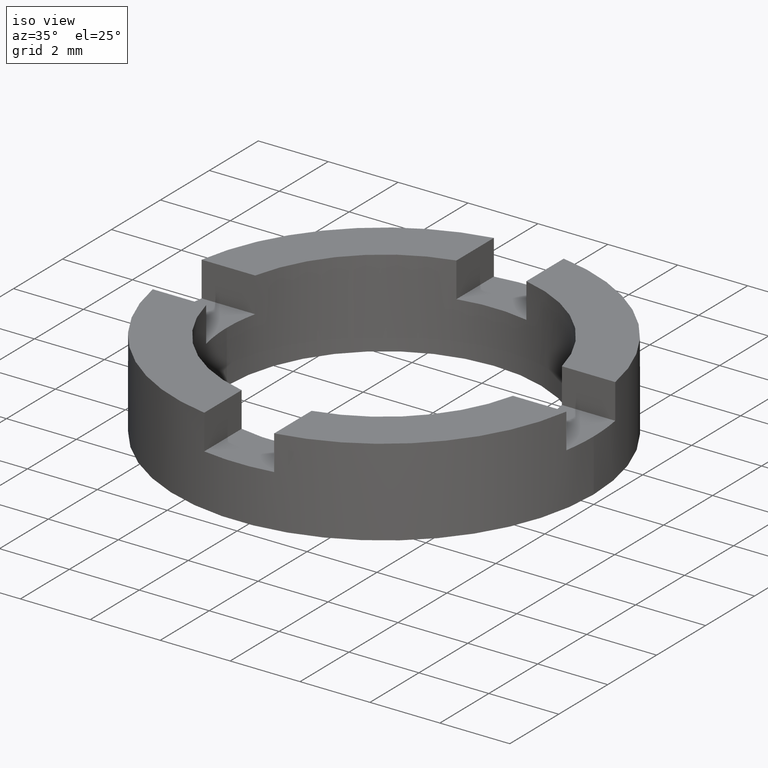
[diagram: clean part render]
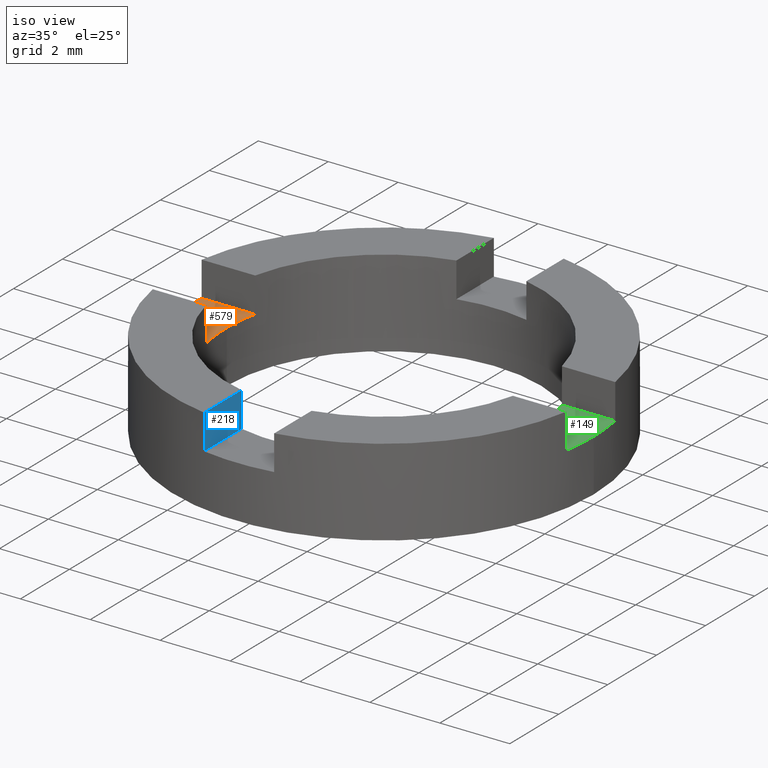
[diagram: same view with three faces highlighted in distinct colors, each labeled with its STEP entity id]
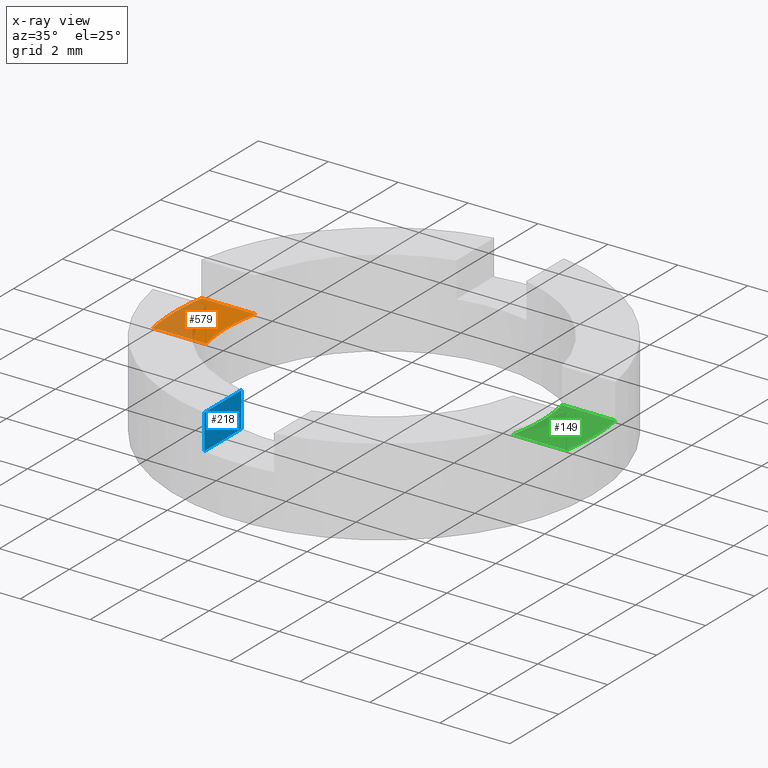
[diagram: x-ray of the same camera — body ghosted, the three highlighted faces saturated]
A machine part, iso view with three faces highlighted in distinct colors.
The next image is the same camera in x-ray (body ghosted, the three faces saturated) — at least one of them is partly hidden behind the body in this view.
Their STEP definitions:

[orange] entity #579 — the highlighted planar face has unit normal (-0, 0, 1).
#7 = CARTESIAN_POINT ( 'NONE',  ( -4.500000000000000000, 0.000000000000000000, 1.500000000000000000 ) ) ;
#38 = EDGE_LOOP ( 'NONE', ( #646, #582, #611, #334, #564, #67 ) ) ;
#54 = DIRECTION ( 'NONE',  ( 1.000000000000000000, -3.722427458866898820E-15, 0.000000000000000000 ) ) ;
#65 = VERTEX_POINT ( 'NONE', #469 ) ;
#67 = ORIENTED_EDGE ( 'NONE', *, *, #454, .T. ) ;
#76 = VERTEX_POINT ( 'NONE', #551 ) ;
#86 = DIRECTION ( 'NONE',  ( 1.000000000000000000, 0.000000000000000000, 0.000000000000000000 ) ) ;
#87 = LINE ( 'NONE', #609, #375 ) ;
#92 = EDGE_CURVE ( 'NONE', #497, #537, #763, .T. ) ;
#99 = DIRECTION ( 'NONE',  ( -0.000000000000000000, 0.000000000000000000, 1.000000000000000000 ) ) ;
#110 = EDGE_CURVE ( 'NONE', #65, #76, #240, .T. ) ;
#148 = EDGE_CURVE ( 'NONE', #65, #651, #494, .T. ) ;
#154 = CARTESIAN_POINT ( 'NONE',  ( 0.000000000000000000, 0.000000000000000000, 1.500000000000000000 ) ) ;
#177 = DIRECTION ( 'NONE',  ( 0.000000000000000000, -0.000000000000000000, -1.000000000000000000 ) ) ;
#184 = DIRECTION ( 'NONE',  ( 1.000000000000000000, 0.000000000000000000, 0.000000000000000000 ) ) ;
#186 = AXIS2_PLACEMENT_3D ( 'NONE', #732, #99, #86 ) ;
#188 = CARTESIAN_POINT ( 'NONE',  ( 0.000000000000000000, 0.000000000000000000, 1.500000000000000000 ) ) ;
#206 = EDGE_CURVE ( 'NONE', #651, #282, #770, .T. ) ;
#240 = LINE ( 'NONE', #578, #243 ) ;
#241 = PLANE ( 'NONE',  #453 ) ;
#243 = VECTOR ( 'NONE', #730, 1000.000000000000000 ) ;
#282 = VERTEX_POINT ( 'NONE', #573 ) ;
#288 = DIRECTION ( 'NONE',  ( 1.000000000000000000, 0.000000000000000000, 0.000000000000000000 ) ) ;
#323 = CARTESIAN_POINT ( 'NONE',  ( 0.000000000000000000, 0.000000000000000000, 1.500000000000000000 ) ) ;
#325 = DIRECTION ( 'NONE',  ( 0.000000000000000000, -0.000000000000000000, -1.000000000000000000 ) ) ;
#328 = FACE_OUTER_BOUND ( 'NONE', #38, .T. ) ;
#333 = CIRCLE ( 'NONE', #709, 4.500000000000000000 ) ;
#334 = ORIENTED_EDGE ( 'NONE', *, *, #702, .T. ) ;
#372 = DIRECTION ( 'NONE',  ( -0.000000000000000000, 0.000000000000000000, 1.000000000000000000 ) ) ;
#375 = VECTOR ( 'NONE', #54, 1000.000000000000000 ) ;
#433 = AXIS2_PLACEMENT_3D ( 'NONE', #756, #372, #465 ) ;
#453 = AXIS2_PLACEMENT_3D ( 'NONE', #323, #694, #288 ) ;
#454 = EDGE_CURVE ( 'NONE', #537, #76, #333, .T. ) ;
#459 = CARTESIAN_POINT ( 'NONE',  ( -6.000000000000000888, 0.000000000000000000, 1.500000000000000000 ) ) ;
#465 = DIRECTION ( 'NONE',  ( 1.000000000000000000, 0.000000000000000000, 0.000000000000000000 ) ) ;
#469 = CARTESIAN_POINT ( 'NONE',  ( -5.916079783099614353, 1.000000000000021316, 1.500000000000000000 ) ) ;
#494 = CIRCLE ( 'NONE', #186, 6.000000000000000888 ) ;
#497 = VERTEX_POINT ( 'NONE', #662 ) ;
#537 = VERTEX_POINT ( 'NONE', #7 ) ;
#551 = CARTESIAN_POINT ( 'NONE',  ( -4.387482193696056854, 1.000000000000015321, 1.500000000000000000 ) ) ;
#564 = ORIENTED_EDGE ( 'NONE', *, *, #92, .T. ) ;
#573 = CARTESIAN_POINT ( 'NONE',  ( -5.916079783099620570, -0.9999999999999790168, 1.500000000000000000 ) ) ;
#578 = CARTESIAN_POINT ( 'NONE',  ( 3.758567531283077831E-15, 0.9999999999999988898, 1.500000000000000000 ) ) ;
#579 = ADVANCED_FACE ( 'NONE', ( #328 ), #241, .T. ) ;
#582 = ORIENTED_EDGE ( 'NONE', *, *, #148, .T. ) ;
#609 = CARTESIAN_POINT ( 'NONE',  ( -3.722427458866902764E-15, -1.000000000000001110, 1.500000000000000000 ) ) ;
#611 = ORIENTED_EDGE ( 'NONE', *, *, #206, .T. ) ;
#626 = AXIS2_PLACEMENT_3D ( 'NONE', #188, #177, #665 ) ;
#646 = ORIENTED_EDGE ( 'NONE', *, *, #110, .F. ) ;
#651 = VERTEX_POINT ( 'NONE', #459 ) ;
#662 = CARTESIAN_POINT ( 'NONE',  ( -4.387482193696063959, -0.9999999999999850120, 1.500000000000000000 ) ) ;
#665 = DIRECTION ( 'NONE',  ( 1.000000000000000000, 0.000000000000000000, 0.000000000000000000 ) ) ;
#694 = DIRECTION ( 'NONE',  ( -0.000000000000000000, 0.000000000000000000, 1.000000000000000000 ) ) ;
#702 = EDGE_CURVE ( 'NONE', #282, #497, #87, .T. ) ;
#709 = AXIS2_PLACEMENT_3D ( 'NONE', #154, #325, #184 ) ;
#730 = DIRECTION ( 'NONE',  ( 1.000000000000000000, -3.758567531283081775E-15, 0.000000000000000000 ) ) ;
#732 = CARTESIAN_POINT ( 'NONE',  ( 0.000000000000000000, 0.000000000000000000, 1.500000000000000000 ) ) ;
#756 = CARTESIAN_POINT ( 'NONE',  ( 0.000000000000000000, 0.000000000000000000, 1.500000000000000000 ) ) ;
#763 = CIRCLE ( 'NONE', #626, 4.500000000000000000 ) ;
#770 = CIRCLE ( 'NONE', #433, 6.000000000000000888 ) ;

[blue] entity #218 — the highlighted planar face has unit normal (1, 0, 0).
#9 = ORIENTED_EDGE ( 'NONE', *, *, #32, .T. ) ;
#18 = EDGE_CURVE ( 'NONE', #371, #618, #764, .T. ) ;
#32 = EDGE_CURVE ( 'NONE', #618, #647, #751, .T. ) ;
#35 = ORIENTED_EDGE ( 'NONE', *, *, #781, .F. ) ;
#36 = EDGE_LOOP ( 'NONE', ( #118, #35, #663, #9 ) ) ;
#46 = CARTESIAN_POINT ( 'NONE',  ( -0.9999999999999986677, -4.387482193696060406, 1.500000000000000000 ) ) ;
#53 = DIRECTION ( 'NONE',  ( 0.000000000000000000, 1.000000000000000000, -0.000000000000000000 ) ) ;
#118 = ORIENTED_EDGE ( 'NONE', *, *, #175, .F. ) ;
#131 = DIRECTION ( 'NONE',  ( 1.000000000000000000, 0.000000000000000000, 0.000000000000000000 ) ) ;
#135 = CARTESIAN_POINT ( 'NONE',  ( -0.9999999999999986677, -4.387482193696060406, 1.500000000000000000 ) ) ;
#164 = DIRECTION ( 'NONE',  ( 0.000000000000000000, 0.000000000000000000, -1.000000000000000000 ) ) ;
#175 = EDGE_CURVE ( 'NONE', #560, #647, #761, .T. ) ;
#218 = ADVANCED_FACE ( 'NONE', ( #491 ), #460, .T. ) ;
#236 = VECTOR ( 'NONE', #685, 1000.000000000000000 ) ;
#249 = VECTOR ( 'NONE', #53, 1000.000000000000000 ) ;
#307 = DIRECTION ( 'NONE',  ( 0.000000000000000000, 1.000000000000000000, -0.000000000000000000 ) ) ;
#349 = CARTESIAN_POINT ( 'NONE',  ( -0.9999999999999986677, 0.000000000000000000, 2.500000000000000000 ) ) ;
#362 = LINE ( 'NONE', #773, #642 ) ;
#371 = VERTEX_POINT ( 'NONE', #676 ) ;
#420 = CARTESIAN_POINT ( 'NONE',  ( -0.9999999999999986677, -4.387482193696060406, 2.500000000000000000 ) ) ;
#460 = PLANE ( 'NONE',  #735 ) ;
#491 = FACE_OUTER_BOUND ( 'NONE', #36, .T. ) ;
#560 = VERTEX_POINT ( 'NONE', #733 ) ;
#597 = CARTESIAN_POINT ( 'NONE',  ( -0.9999999999999986677, 0.000000000000000000, 1.500000000000000000 ) ) ;
#618 = VERTEX_POINT ( 'NONE', #46 ) ;
#642 = VECTOR ( 'NONE', #748, 1000.000000000000000 ) ;
#647 = VERTEX_POINT ( 'NONE', #420 ) ;
#663 = ORIENTED_EDGE ( 'NONE', *, *, #18, .T. ) ;
#676 = CARTESIAN_POINT ( 'NONE',  ( -0.9999999999999986677, -5.916079783099617906, 1.500000000000000000 ) ) ;
#685 = DIRECTION ( 'NONE',  ( -0.000000000000000000, -0.000000000000000000, 1.000000000000000000 ) ) ;
#708 = CARTESIAN_POINT ( 'NONE',  ( -0.9999999999999986677, 0.000000000000000000, 1.500000000000000000 ) ) ;
#733 = CARTESIAN_POINT ( 'NONE',  ( -0.9999999999999986677, -5.916079783099617906, 2.500000000000000000 ) ) ;
#735 = AXIS2_PLACEMENT_3D ( 'NONE', #597, #131, #164 ) ;
#748 = DIRECTION ( 'NONE',  ( -0.000000000000000000, -0.000000000000000000, 1.000000000000000000 ) ) ;
#751 = LINE ( 'NONE', #135, #236 ) ;
#761 = LINE ( 'NONE', #349, #768 ) ;
#764 = LINE ( 'NONE', #708, #249 ) ;
#768 = VECTOR ( 'NONE', #307, 1000.000000000000000 ) ;
#773 = CARTESIAN_POINT ( 'NONE',  ( -0.9999999999999986677, -5.916079783099617906, 1.500000000000000000 ) ) ;
#781 = EDGE_CURVE ( 'NONE', #371, #560, #362, .T. ) ;

[green] entity #149 — the highlighted planar face has unit normal (-0, 0, 1).
#26 = ORIENTED_EDGE ( 'NONE', *, *, #464, .T. ) ;
#30 = AXIS2_PLACEMENT_3D ( 'NONE', #432, #493, #411 ) ;
#45 = EDGE_LOOP ( 'NONE', ( #117, #528, #407, #783, #26, #160 ) ) ;
#106 = VERTEX_POINT ( 'NONE', #151 ) ;
#117 = ORIENTED_EDGE ( 'NONE', *, *, #508, .F. ) ;
#121 = CARTESIAN_POINT ( 'NONE',  ( 4.500000000000000000, 5.510910596163088569E-16, 1.500000000000000000 ) ) ;
#136 = DIRECTION ( 'NONE',  ( 0.000000000000000000, -0.000000000000000000, -1.000000000000000000 ) ) ;
#149 = ADVANCED_FACE ( 'NONE', ( #767 ), #445, .T. ) ;
#151 = CARTESIAN_POINT ( 'NONE',  ( 5.916079783099613465, -1.000000000000023315, 1.500000000000000000 ) ) ;
#155 = CARTESIAN_POINT ( 'NONE',  ( 0.000000000000000000, 0.000000000000000000, 1.500000000000000000 ) ) ;
#160 = ORIENTED_EDGE ( 'NONE', *, *, #548, .T. ) ;
#203 = DIRECTION ( 'NONE',  ( 1.000000000000000000, -3.722427458866898820E-15, 0.000000000000000000 ) ) ;
#227 = AXIS2_PLACEMENT_3D ( 'NONE', #486, #332, #250 ) ;
#250 = DIRECTION ( 'NONE',  ( 1.000000000000000000, 0.000000000000000000, 0.000000000000000000 ) ) ;
#295 = DIRECTION ( 'NONE',  ( 0.000000000000000000, -0.000000000000000000, -1.000000000000000000 ) ) ;
#302 = AXIS2_PLACEMENT_3D ( 'NONE', #378, #295, #483 ) ;
#320 = DIRECTION ( 'NONE',  ( -0.000000000000000000, 0.000000000000000000, 1.000000000000000000 ) ) ;
#332 = DIRECTION ( 'NONE',  ( -0.000000000000000000, 0.000000000000000000, 1.000000000000000000 ) ) ;
#350 = CIRCLE ( 'NONE', #30, 6.000000000000000888 ) ;
#355 = VERTEX_POINT ( 'NONE', #121 ) ;
#356 = LINE ( 'NONE', #436, #629 ) ;
#370 = CIRCLE ( 'NONE', #561, 6.000000000000000888 ) ;
#373 = VECTOR ( 'NONE', #451, 1000.000000000000000 ) ;
#378 = CARTESIAN_POINT ( 'NONE',  ( 0.000000000000000000, 0.000000000000000000, 1.500000000000000000 ) ) ;
#392 = DIRECTION ( 'NONE',  ( 1.000000000000000000, 0.000000000000000000, 0.000000000000000000 ) ) ;
#407 = ORIENTED_EDGE ( 'NONE', *, *, #720, .T. ) ;
#411 = DIRECTION ( 'NONE',  ( 1.000000000000000000, 0.000000000000000000, 0.000000000000000000 ) ) ;
#412 = VERTEX_POINT ( 'NONE', #710 ) ;
#415 = CARTESIAN_POINT ( 'NONE',  ( 3.758567531283077831E-15, 0.9999999999999988898, 1.500000000000000000 ) ) ;
#432 = CARTESIAN_POINT ( 'NONE',  ( 0.000000000000000000, 0.000000000000000000, 1.500000000000000000 ) ) ;
#434 = DIRECTION ( 'NONE',  ( 1.000000000000000000, 0.000000000000000000, 0.000000000000000000 ) ) ;
#436 = CARTESIAN_POINT ( 'NONE',  ( -3.722427458866902764E-15, -1.000000000000001110, 1.500000000000000000 ) ) ;
#445 = PLANE ( 'NONE',  #227 ) ;
#451 = DIRECTION ( 'NONE',  ( 1.000000000000000000, -3.758567531283081775E-15, 0.000000000000000000 ) ) ;
#458 = EDGE_CURVE ( 'NONE', #567, #355, #614, .T. ) ;
#464 = EDGE_CURVE ( 'NONE', #106, #412, #370, .T. ) ;
#483 = DIRECTION ( 'NONE',  ( 1.000000000000000000, -1.421085471520200372E-14, 0.000000000000000000 ) ) ;
#486 = CARTESIAN_POINT ( 'NONE',  ( 0.000000000000000000, 0.000000000000000000, 1.500000000000000000 ) ) ;
#493 = DIRECTION ( 'NONE',  ( -0.000000000000000000, 0.000000000000000000, 1.000000000000000000 ) ) ;
#508 = EDGE_CURVE ( 'NONE', #567, #775, #634, .T. ) ;
#523 = VERTEX_POINT ( 'NONE', #726 ) ;
#528 = ORIENTED_EDGE ( 'NONE', *, *, #458, .T. ) ;
#548 = EDGE_CURVE ( 'NONE', #412, #775, #350, .T. ) ;
#559 = CARTESIAN_POINT ( 'NONE',  ( 5.916079783099621459, 0.9999999999999765743, 1.500000000000000000 ) ) ;
#561 = AXIS2_PLACEMENT_3D ( 'NONE', #155, #320, #392 ) ;
#567 = VERTEX_POINT ( 'NONE', #741 ) ;
#602 = CIRCLE ( 'NONE', #714, 4.500000000000000000 ) ;
#614 = CIRCLE ( 'NONE', #302, 4.500000000000000000 ) ;
#629 = VECTOR ( 'NONE', #203, 1000.000000000000000 ) ;
#634 = LINE ( 'NONE', #415, #373 ) ;
#691 = CARTESIAN_POINT ( 'NONE',  ( 0.000000000000000000, 0.000000000000000000, 1.500000000000000000 ) ) ;
#710 = CARTESIAN_POINT ( 'NONE',  ( 6.000000000000000888, 7.347880794884120722E-16, 1.500000000000000000 ) ) ;
#714 = AXIS2_PLACEMENT_3D ( 'NONE', #691, #136, #434 ) ;
#720 = EDGE_CURVE ( 'NONE', #355, #523, #602, .T. ) ;
#726 = CARTESIAN_POINT ( 'NONE',  ( 4.387482193696056854, -1.000000000000017319, 1.500000000000000000 ) ) ;
#737 = EDGE_CURVE ( 'NONE', #523, #106, #356, .T. ) ;
#741 = CARTESIAN_POINT ( 'NONE',  ( 4.387482193696063959, 0.9999999999999824585, 1.500000000000000000 ) ) ;
#767 = FACE_OUTER_BOUND ( 'NONE', #45, .T. ) ;
#775 = VERTEX_POINT ( 'NONE', #559 ) ;
#783 = ORIENTED_EDGE ( 'NONE', *, *, #737, .T. ) ;